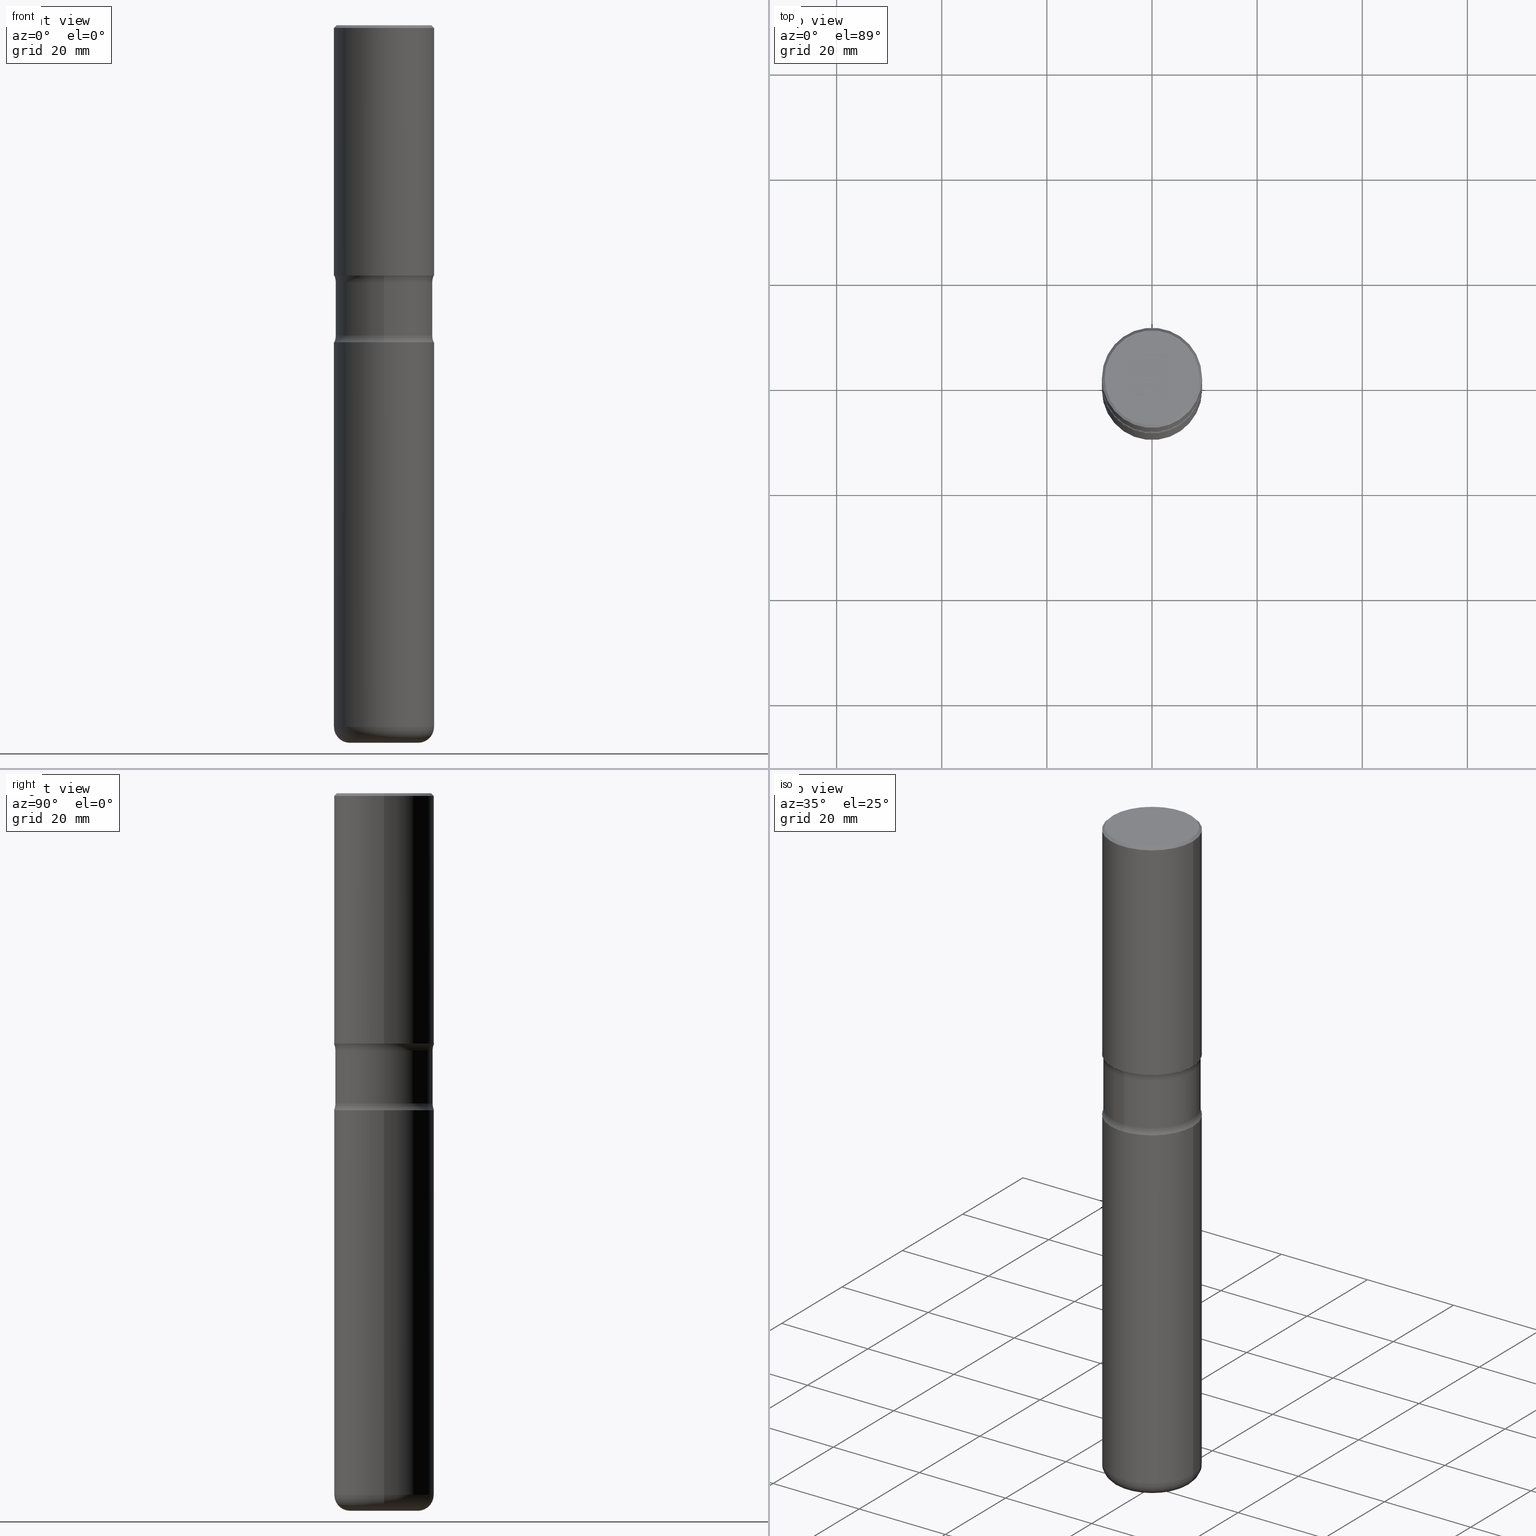
[diagram: canonical four-view strip — front | top / right | iso, engineering-drawing reading convention]
A machine part, canonical four-view strip (front | top / right | iso — engineering-drawing reading convention). The complete STEP part file that produces these views, byte-faithful:
ISO-10303-21;
HEADER;
FILE_DESCRIPTION (( 'STEP AP203' ),
    '1' );
FILE_NAME ('34031.STEP',
    '2024-03-01T23:00:38',
    ( '' ),
    ( '' ),
    'SwSTEP 2.0',
    'SolidWorks 2023',
    '' );
FILE_SCHEMA (( 'CONFIG_CONTROL_DESIGN' ));
ENDSEC;

DATA;
#1 = CARTESIAN_POINT ( 'NONE',  ( -3.354783520910221448E-15, -0.4890000000000080949, -2.323726225026820469 ) ) ;
#2 = ORIENTED_EDGE ( 'NONE', *, *, #478, .F. ) ;
#3 = CARTESIAN_POINT ( 'NONE',  ( 5.807988414689700538E-29, -8.292268179752471696E-15, -2.375000000000000000 ) ) ;
#4 = EDGE_CURVE ( 'NONE', #460, #52, #42, .T. ) ;
#5 = ORIENTED_EDGE ( 'NONE', *, *, #435, .F. ) ;
#6 = AXIS2_PLACEMENT_3D ( 'NONE', #516, #301, #350 ) ;
#7 = CYLINDRICAL_SURFACE ( 'NONE', #34, 0.3750000000000003886 ) ;
#8 = CYLINDRICAL_SURFACE ( 'NONE', #515, 0.3639999999999999902 ) ;
#9 = ORIENTED_EDGE ( 'NONE', *, *, #71, .F. ) ;
#10 = CC_DESIGN_DATE_AND_TIME_ASSIGNMENT ( #437, #479, ( #356 ) ) ;
#11 = DIRECTION ( 'NONE',  ( 1.000000000000000000, -6.982962677686265922E-15, 0.000000000000000000 ) ) ;
#12 = CARTESIAN_POINT ( 'NONE',  ( 2.478951750578624209E-15, 0.3549999999999999822, -1.233073106554166000E-15 ) ) ;
#13 = AXIS2_PLACEMENT_3D ( 'NONE', #505, #32, #217 ) ;
#14 = CIRCLE ( 'NONE', #385, 0.3750000000000002776 ) ;
#15 = VERTEX_POINT ( 'NONE', #332 ) ;
#16 = TOROIDAL_SURFACE ( 'NONE', #432, 0.4889999999999999347, 0.1250000000000000555 ) ;
#17 = APPROVAL_STATUS ( 'not_yet_approved' ) ;
#18 = DIRECTION ( 'NONE',  ( 1.000000000000000000, -6.860497997771530774E-15, 4.841356471107676355E-29 ) ) ;
#19 = ORIENTED_EDGE ( 'NONE', *, *, #525, .F. ) ;
#20 = MECHANICAL_CONTEXT ( 'NONE', #268, 'mechanical' ) ;
#21 = CARTESIAN_POINT ( 'NONE',  ( -0.3750000000000004441, -1.568319917652035099E-14, -5.254999999999999893 ) ) ;
#22 = ORIENTED_EDGE ( 'NONE', *, *, #4, .F. ) ;
#23 = SECURITY_CLASSIFICATION_LEVEL ( 'unclassified' ) ;
#24 = DIRECTION ( 'NONE',  ( -2.438088387897960049E-29, 3.491481338843145188E-15, 1.000000000000000000 ) ) ;
#25 = ORIENTED_EDGE ( 'NONE', *, *, #116, .T. ) ;
#26 = CIRCLE ( 'NONE', #13, 0.3750000000000000555 ) ;
#27 = DATE_AND_TIME ( #197, #379 ) ;
#28 = MANIFOLD_SOLID_BREP ( 'Body-Move/Copy2[1]', #341 ) ;
#29 = PLANE ( 'NONE',  #474 ) ;
#30 = ORIENTED_EDGE ( 'NONE', *, *, #307, .F. ) ;
#31 = FACE_OUTER_BOUND ( 'NONE', #306, .T. ) ;
#32 = DIRECTION ( 'NONE',  ( -2.445468806185136597E-29, 3.491481338843145583E-15, 1.000000000000000000 ) ) ;
#33 = VERTEX_POINT ( 'NONE', #175 ) ;
#34 = AXIS2_PLACEMENT_3D ( 'NONE', #467, #381, #92 ) ;
#35 = DIRECTION ( 'NONE',  ( 2.477262793819919418E-29, -3.445950538948741294E-15, -1.000000000000000000 ) ) ;
#36 = EDGE_CURVE ( 'NONE', #386, #66, #257, .T. ) ;
#37 = CARTESIAN_POINT ( 'NONE',  ( 5.807988414689700538E-29, -8.292268179752471696E-15, -2.375000000000000000 ) ) ;
#38 = EDGE_CURVE ( 'NONE', #309, #534, #497, .T. ) ;
#39 = CARTESIAN_POINT ( 'NONE',  ( 4.710642428869395314E-29, -6.725548938821792843E-15, -1.926273774973178421 ) ) ;
#40 = CYLINDRICAL_SURFACE ( 'NONE', #141, 0.3750000000000003886 ) ;
#41 = CARTESIAN_POINT ( 'NONE',  ( -0.2550000000000004485, -1.631901369830699821E-14, -5.374999999999999112 ) ) ;
#42 = CIRCLE ( 'NONE', #226, 0.3639999999999999902 ) ;
#43 = LOCAL_TIME ( 18, 0, 38.00000000000000000, #537 ) ;
#44 = DIRECTION ( 'NONE',  ( 1.000000000000000000, -6.982962677686265922E-15, 4.876231632511988183E-29 ) ) ;
#45 = VERTEX_POINT ( 'NONE', #455 ) ;
#46 = DIRECTION ( 'NONE',  ( -2.445468806185136597E-29, 3.491481338843145583E-15, 1.000000000000000000 ) ) ;
#47 = ORIENTED_EDGE ( 'NONE', *, *, #476, .T. ) ;
#48 = CARTESIAN_POINT ( 'NONE',  ( -0.3549999999999999822, 2.513866563967055464E-15, 1.280553747028377567E-17 ) ) ;
#49 = AXIS2_PLACEMENT_3D ( 'NONE', #395, #147, #207 ) ;
#50 = DIRECTION ( 'NONE',  ( -2.445468806185136597E-29, 3.491481338843145583E-15, 1.000000000000000000 ) ) ;
#51 = DIRECTION ( 'NONE',  ( 2.477262793819918857E-29, -3.445950538948741294E-15, -1.000000000000000000 ) ) ;
#52 = VERTEX_POINT ( 'NONE', #74 ) ;
#53 = DIRECTION ( 'NONE',  ( 2.477262793819919418E-29, -3.445950538948741294E-15, -1.000000000000000000 ) ) ;
#54 = VERTEX_POINT ( 'NONE', #41 ) ;
#55 = CALENDAR_DATE ( 2024, 1, 3 ) ;
#56 = DIRECTION ( 'NONE',  ( 1.000000000000000000, -6.982962677686265922E-15, 4.876231632511988183E-29 ) ) ;
#57 = EDGE_CURVE ( 'NONE', #344, #398, #507, .T. ) ;
#58 = AXIS2_PLACEMENT_3D ( 'NONE', #1, #133, #259 ) ;
#59 = EDGE_LOOP ( 'NONE', ( #135, #160, #232, #484 ) ) ;
#60 = PERSON_AND_ORGANIZATION ( #148, #536 ) ;
#61 = DIRECTION ( 'NONE',  ( 6.860497997771527618E-15, 1.000000000000000000, 0.000000000000000000 ) ) ;
#62 = CC_DESIGN_PERSON_AND_ORGANIZATION_ASSIGNMENT ( #151, #360, ( #81 ) ) ;
#63 = ORIENTED_EDGE ( 'NONE', *, *, #349, .F. ) ;
#64 = PERSON_AND_ORGANIZATION_ROLE ( 'design_owner' ) ;
#65 = CARTESIAN_POINT ( 'NONE',  ( -2.572686749164268327E-15, -0.3750000000000085487, -2.374999999999998668 ) ) ;
#66 = VERTEX_POINT ( 'NONE', #410 ) ;
#67 = DIRECTION ( 'NONE',  ( -2.445468806185136597E-29, 3.491481338843145583E-15, 1.000000000000000000 ) ) ;
#68 = EDGE_LOOP ( 'NONE', ( #489, #265, #447, #208 ) ) ;
#69 = AXIS2_PLACEMENT_3D ( 'NONE', #397, #159, #308 ) ;
#70 = LOCAL_TIME ( 18, 0, 38.00000000000000000, #104 ) ;
#71 = EDGE_CURVE ( 'NONE', #33, #66, #26, .T. ) ;
#72 = COORDINATED_UNIVERSAL_TIME_OFFSET ( 5, 0, .BEHIND. ) ;
#73 = DIRECTION ( 'NONE',  ( 6.982962677686265922E-15, 1.000000000000000000, -3.445950538948741294E-15 ) ) ;
#74 = CARTESIAN_POINT ( 'NONE',  ( 2.541798414677857502E-15, 0.3639999999999918856, -2.323726225026823577 ) ) ;
#75 = DIRECTION ( 'NONE',  ( 2.477262793819919418E-29, -3.445950538948741294E-15, -1.000000000000000000 ) ) ;
#76 = CARTESIAN_POINT ( 'NONE',  ( 0.000000000000000000, 0.000000000000000000, 0.000000000000000000 ) ) ;
#77 = CARTESIAN_POINT ( 'NONE',  ( 2.618611004132410364E-15, 0.3749999999999920619, -2.375000000000001776 ) ) ;
#78 = ADVANCED_FACE ( 'NONE', ( #287 ), #333, .F. ) ;
#79 = ORIENTED_EDGE ( 'NONE', *, *, #514, .T. ) ;
#80 = AXIS2_PLACEMENT_3D ( 'NONE', #433, #224, #44 ) ;
#81 = SECURITY_CLASSIFICATION ( '', '', #23 ) ;
#82 = DIRECTION ( 'NONE',  ( -2.445468806185136597E-29, 3.491481338843145583E-15, 1.000000000000000000 ) ) ;
#83 = ORIENTED_EDGE ( 'NONE', *, *, #71, .T. ) ;
#84 = CARTESIAN_POINT ( 'NONE',  ( 5.680969799649951184E-29, -8.115581287249711979E-15, -2.323726225026822245 ) ) ;
#85 = FACE_OUTER_BOUND ( 'NONE', #548, .T. ) ;
#86 = TOROIDAL_SURFACE ( 'NONE', #311, 0.2550000000000004485, 0.1199999999999999262 ) ;
#87 = VECTOR ( 'NONE', #222, 39.37007874015748143 ) ;
#88 = AXIS2_PLACEMENT_3D ( 'NONE', #494, #541, #166 ) ;
#89 = CARTESIAN_POINT ( 'NONE',  ( 5.807988414689700538E-29, -8.292268179752471696E-15, -2.375000000000000000 ) ) ;
#90 = CARTESIAN_POINT ( 'NONE',  ( 0.3750000000000003886, -2.618611004132352383E-15, 1.828566290923477884E-29 ) ) ;
#91 = ORIENTED_EDGE ( 'NONE', *, *, #501, .T. ) ;
#92 = DIRECTION ( 'NONE',  ( 1.000000000000000000, -6.982962677686265922E-15, 4.876176775795935793E-29 ) ) ;
#93 = CC_DESIGN_PERSON_AND_ORGANIZATION_ASSIGNMENT ( #543, #310, ( #356 ) ) ;
#94 = AXIS2_PLACEMENT_3D ( 'NONE', #298, #473, #299 ) ;
#95 = FACE_OUTER_BOUND ( 'NONE', #492, .T. ) ;
#96 = EDGE_LOOP ( 'NONE', ( #196, #30 ) ) ;
#97 = DIRECTION ( 'NONE',  ( 6.982962677686265922E-15, 1.000000000000000000, -3.445950538948741294E-15 ) ) ;
#98 = VERTEX_POINT ( 'NONE', #416 ) ;
#99 = DIRECTION ( 'NONE',  ( 0.000000000000000000, 0.000000000000000000, 1.000000000000000000 ) ) ;
#100 = ADVANCED_FACE ( 'NONE', ( #545 ), #128, .F. ) ;
#101 = DIRECTION ( 'NONE',  ( 2.477262793819919418E-29, -3.445950538948741294E-15, -1.000000000000000000 ) ) ;
#102 = ORIENTED_EDGE ( 'NONE', *, *, #366, .T. ) ;
#103 = ORIENTED_EDGE ( 'NONE', *, *, #438, .F. ) ;
#104 = COORDINATED_UNIVERSAL_TIME_OFFSET ( 5, 0, .BEHIND. ) ;
#105 = EDGE_CURVE ( 'NONE', #182, #33, #290, .T. ) ;
#106 = DIRECTION ( 'NONE',  ( -2.445468806185136597E-29, 3.491481338843145583E-15, 1.000000000000000000 ) ) ;
#107 = CIRCLE ( 'NONE', #49, 0.3750000000000002776 ) ;
#108 = AXIS2_PLACEMENT_3D ( 'NONE', #323, #82, #504 ) ;
#109 = ORIENTED_EDGE ( 'NONE', *, *, #554, .F. ) ;
#110 = COORDINATED_UNIVERSAL_TIME_OFFSET ( 5, 0, .BEHIND. ) ;
#111 = CARTESIAN_POINT ( 'NONE',  ( 4.710642428869395314E-29, -6.725548938821792843E-15, -1.926273774973178421 ) ) ;
#112 = VERTEX_POINT ( 'NONE', #511 ) ;
#113 = ADVANCED_FACE ( 'NONE', ( #377 ), #40, .T. ) ;
#114 = DIRECTION ( 'NONE',  ( 1.000000000000000000, -6.982962677686265922E-15, 4.876176775795935793E-29 ) ) ;
#115 = ORIENTED_EDGE ( 'NONE', *, *, #105, .F. ) ;
#116 = EDGE_CURVE ( 'NONE', #398, #460, #121, .T. ) ;
#117 = APPROVAL_DATE_TIME ( #493, #522 ) ;
#118 = DIRECTION ( 'NONE',  ( 6.982962677686266711E-15, 1.000000000000000000, -3.642463991552348591E-15 ) ) ;
#119 = VERTEX_POINT ( 'NONE', #127 ) ;
#120 = AXIS2_PLACEMENT_3D ( 'NONE', #315, #18, #61 ) ;
#121 = LINE ( 'NONE', #373, #234 ) ;
#122 =( CONVERSION_BASED_UNIT ( 'INCH', #411 ) LENGTH_UNIT ( ) NAMED_UNIT ( #319 ) );
#123 = CARTESIAN_POINT ( 'NONE',  ( 0.000000000000000000, 0.000000000000000000, 0.000000000000000000 ) ) ;
#124 = LINE ( 'NONE', #461, #475 ) ;
#125 = DIRECTION ( 'NONE',  ( -6.982962677686265922E-15, -1.000000000000000000, 3.445950538948741294E-15 ) ) ;
#126 = CIRCLE ( 'NONE', #351, 0.3750000000000004996 ) ;
#127 = CARTESIAN_POINT ( 'NONE',  ( 0.3750000000000004441, -2.096634543975308301E-14, -5.254999999999999893 ) ) ;
#128 = PLANE ( 'NONE',  #176 ) ;
#129 = FACE_OUTER_BOUND ( 'NONE', #138, .T. ) ;
#130 = EDGE_CURVE ( 'NONE', #54, #412, #284, .T. ) ;
#131 = TOROIDAL_SURFACE ( 'NONE', #177, 0.4889999999999999347, 0.1250000000000000278 ) ;
#132 = CC_DESIGN_APPROVAL ( #420, ( #356 ) ) ;
#133 = DIRECTION ( 'NONE',  ( 1.000000000000000000, -6.860497997771530774E-15, 4.841356471107676355E-29 ) ) ;
#134 = ADVANCED_FACE ( 'NONE', ( #330 ), #503, .T. ) ;
#135 = ORIENTED_EDGE ( 'NONE', *, *, #510, .F. ) ;
#136 = EDGE_CURVE ( 'NONE', #309, #460, #498, .T. ) ;
#137 = DIRECTION ( 'NONE',  ( 6.982962677686265922E-15, 1.000000000000000000, -3.002030762268421058E-15 ) ) ;
#138 = EDGE_LOOP ( 'NONE', ( #223, #140, #91, #199 ) ) ;
#139 = DIRECTION ( 'NONE',  ( 6.982962677686265922E-15, 1.000000000000000000, -3.445950538948741294E-15 ) ) ;
#140 = ORIENTED_EDGE ( 'NONE', *, *, #438, .T. ) ;
#141 = AXIS2_PLACEMENT_3D ( 'NONE', #76, #500, #219 ) ;
#142 = DIRECTION ( 'NONE',  ( 1.000000000000000000, -6.982962677686263555E-15, 0.000000000000000000 ) ) ;
#143 = APPROVAL_PERSON_ORGANIZATION ( #527, #267, #399 ) ;
#144 = CARTESIAN_POINT ( 'NONE',  ( -2.534954010176524559E-15, -0.3640000000000081504, -2.323726225026820913 ) ) ;
#145 = EDGE_LOOP ( 'NONE', ( #334, #539, #102, #512 ) ) ;
#146 = PRODUCT ( '34031', '34031', '', ( #20 ) ) ;
#147 = DIRECTION ( 'NONE',  ( 2.477262793819919418E-29, -3.445950538948741294E-15, -1.000000000000000000 ) ) ;
#148 = PERSON ( 'UNSPECIFIED', 'UNSPECIFIED', 'UNSPECIFIED', ('UNSPECIFIED'), ('UNSPECIFIED'), ('UNSPECIFIED') ) ;
#149 = ORIENTED_EDGE ( 'NONE', *, *, #4, .T. ) ;
#150 = ORIENTED_EDGE ( 'NONE', *, *, #105, .T. ) ;
#151 = PERSON_AND_ORGANIZATION ( #148, #536 ) ;
#152 = DIRECTION ( 'NONE',  ( -1.000000000000000000, 6.982962677686265922E-15, -4.883557194083112901E-29 ) ) ;
#153 = CIRCLE ( 'NONE', #6, 0.3750000000000000555 ) ;
#154 = AXIS2_PLACEMENT_3D ( 'NONE', #555, #75, #247 ) ;
#155 = ORIENTED_EDGE ( 'NONE', *, *, #546, .F. ) ;
#156 = DATE_AND_TIME ( #452, #43 ) ;
#157 = DESIGN_CONTEXT ( 'detailed design', #496, 'design' ) ;
#158 = ADVANCED_FACE ( 'NONE', ( #383 ), #470, .T. ) ;
#159 = DIRECTION ( 'NONE',  ( -1.000000000000000000, 6.982962677686265922E-15, -4.883557194083112901E-29 ) ) ;
#160 = ORIENTED_EDGE ( 'NONE', *, *, #349, .T. ) ;
#161 = PERSON_AND_ORGANIZATION ( #148, #536 ) ;
#162 = CARTESIAN_POINT ( 'NONE',  ( 1.323977679614945879E-28, -1.863011979659869597E-14, -5.375000000000000888 ) ) ;
#163 = ORIENTED_EDGE ( 'NONE', *, *, #185, .T. ) ;
#164 = DIRECTION ( 'NONE',  ( 1.000000000000000000, 0.000000000000000000, 0.000000000000000000 ) ) ;
#165 = UNCERTAINTY_MEASURE_WITH_UNIT (LENGTH_MEASURE( 1.000000000000000082E-05 ), #122, 'distance_accuracy_value', 'NONE');
#166 = DIRECTION ( 'NONE',  ( 1.000000000000000000, -6.982962677686273021E-15, 0.000000000000000000 ) ) ;
#167 = DIRECTION ( 'NONE',  ( 2.477262793819919418E-29, -3.445950538948741294E-15, -1.000000000000000000 ) ) ;
#168 = ADVANCED_FACE ( 'NONE', ( #422 ), #263, .T. ) ;
#169 = CARTESIAN_POINT ( 'NONE',  ( 4.569357017779739708E-29, -6.569292910278100457E-15, -1.875000000000000000 ) ) ;
#170 = ORIENTED_EDGE ( 'NONE', *, *, #171, .F. ) ;
#171 = EDGE_CURVE ( 'NONE', #386, #182, #392, .T. ) ;
#172 =( NAMED_UNIT ( * ) SI_UNIT ( $, .STERADIAN. ) SOLID_ANGLE_UNIT ( ) );
#173 = ORIENTED_EDGE ( 'NONE', *, *, #501, .F. ) ;
#174 = DIRECTION ( 'NONE',  ( 2.477262793819919418E-29, -3.445950538948741294E-15, -1.000000000000000000 ) ) ;
#175 = CARTESIAN_POINT ( 'NONE',  ( -0.3750000000000000555, 2.548781377355486718E-15, -0.02000000000000006981 ) ) ;
#176 = AXIS2_PLACEMENT_3D ( 'NONE', #37, #220, #125 ) ;
#177 = AXIS2_PLACEMENT_3D ( 'NONE', #521, #518, #348 ) ;
#178 = AXIS2_PLACEMENT_3D ( 'NONE', #12, #192, #353 ) ;
#179 = CC_DESIGN_DATE_AND_TIME_ASSIGNMENT ( #156, #490, ( #81 ) ) ;
#180 = CARTESIAN_POINT ( 'NONE',  ( 5.807988414689700538E-29, -8.292268179752471696E-15, -2.375000000000000000 ) ) ;
#181 = DIRECTION ( 'NONE',  ( 2.477262793819919418E-29, -3.445950538948741294E-15, -1.000000000000000000 ) ) ;
#182 = VERTEX_POINT ( 'NONE', #48 ) ;
#183 = DIRECTION ( 'NONE',  ( 1.000000000000000000, -6.982962677686266711E-15, 4.876176775795935793E-29 ) ) ;
#184 = CLOSED_SHELL ( 'NONE', ( #506, #78, #429, #531, #225, #100, #300, #214 ) ) ;
#185 = EDGE_CURVE ( 'NONE', #344, #52, #387, .T. ) ;
#186 = AXIS2_PLACEMENT_3D ( 'NONE', #111, #538, #97 ) ;
#187 = APPROVAL_PERSON_ORGANIZATION ( #449, #522, #194 ) ;
#188 = DIRECTION ( 'NONE',  ( -2.445468806185136597E-29, 3.491481338843145583E-15, 1.000000000000000000 ) ) ;
#189 = LINE ( 'NONE', #90, #87 ) ;
#190 = DIRECTION ( 'NONE',  ( -1.000000000000000000, 6.982962677686265922E-15, -4.876176775795935793E-29 ) ) ;
#191 = AXIS2_PLACEMENT_3D ( 'NONE', #180, #167, #419 ) ;
#192 = DIRECTION ( 'NONE',  ( 2.438088387897960049E-29, -3.491481338843145188E-15, -1.000000000000000000 ) ) ;
#193 = ORIENTED_EDGE ( 'NONE', *, *, #327, .F. ) ;
#194 = APPROVAL_ROLE ( '' ) ;
#195 = DIRECTION ( 'NONE',  ( 6.982962677686265922E-15, 1.000000000000000000, -3.752538452835526126E-15 ) ) ;
#196 = ORIENTED_EDGE ( 'NONE', *, *, #401, .F. ) ;
#197 = CALENDAR_DATE ( 2024, 1, 3 ) ;
#198 = FACE_OUTER_BOUND ( 'NONE', #230, .T. ) ;
#199 = ORIENTED_EDGE ( 'NONE', *, *, #256, .F. ) ;
#200 = EDGE_CURVE ( 'NONE', #119, #112, #189, .T. ) ;
#201 = COORDINATED_UNIVERSAL_TIME_OFFSET ( 5, 0, .BEHIND. ) ;
#202 = DIRECTION ( 'NONE',  ( -2.445468806185136597E-29, 3.491481338843145583E-15, 1.000000000000000000 ) ) ;
#203 = CIRCLE ( 'NONE', #120, 0.1250000000000001110 ) ;
#204 = LOCAL_TIME ( 18, 0, 38.00000000000000000, #201 ) ;
#205 = ORIENTED_EDGE ( 'NONE', *, *, #185, .F. ) ;
#206 = CARTESIAN_POINT ( 'NONE',  ( 0.000000000000000000, 0.000000000000000000, 0.000000000000000000 ) ) ;
#207 = DIRECTION ( 'NONE',  ( 6.982962677686266711E-15, 1.000000000000000000, -3.642463991552348591E-15 ) ) ;
#208 = ORIENTED_EDGE ( 'NONE', *, *, #258, .F. ) ;
#209 = CYLINDRICAL_SURFACE ( 'NONE', #372, 0.3639999999999999902 ) ;
#210 = DIRECTION ( 'NONE',  ( 2.477262793819919418E-29, -3.445950538948741294E-15, -1.000000000000000000 ) ) ;
#211 = DIRECTION ( 'NONE',  ( -2.445468806185136877E-29, 3.491481338843145188E-15, 1.000000000000000000 ) ) ;
#212 = DIRECTION ( 'NONE',  ( 2.477262793819919418E-29, -3.445950538948741294E-15, -1.000000000000000000 ) ) ;
#213 = AXIS2_PLACEMENT_3D ( 'NONE', #363, #101, #271 ) ;
#214 = ADVANCED_FACE ( 'NONE', ( #95 ), #8, .T. ) ;
#215 = LOCAL_TIME ( 18, 0, 38.00000000000000000, #110 ) ;
#216 = MANIFOLD_SOLID_BREP ( 'Body-Move/Copy2[2]', #413 ) ;
#217 = DIRECTION ( 'NONE',  ( 1.000000000000000000, -6.982962677686265922E-15, 0.000000000000000000 ) ) ;
#218 = DIRECTION ( 'NONE',  ( -2.445468806185136597E-29, 3.491481338843145583E-15, 1.000000000000000000 ) ) ;
#219 = DIRECTION ( 'NONE',  ( 1.000000000000000000, -6.982962677686265922E-15, 4.876176775795935793E-29 ) ) ;
#220 = DIRECTION ( 'NONE',  ( -2.477262793819918857E-29, 3.445950538948741294E-15, 1.000000000000000000 ) ) ;
#221 = CIRCLE ( 'NONE', #523, 0.2550000000000004485 ) ;
#222 = DIRECTION ( 'NONE',  ( -2.445468806185136877E-29, 3.491481338843145188E-15, 1.000000000000000000 ) ) ;
#223 = ORIENTED_EDGE ( 'NONE', *, *, #130, .F. ) ;
#224 = DIRECTION ( 'NONE',  ( -2.445468806185136597E-29, 3.491481338843145583E-15, 1.000000000000000000 ) ) ;
#225 = ADVANCED_FACE ( 'NONE', ( #425 ), #261, .F. ) ;
#226 = AXIS2_PLACEMENT_3D ( 'NONE', #84, #212, #255 ) ;
#227 = AXIS2_PLACEMENT_3D ( 'NONE', #123, #288, #228 ) ;
#228 = DIRECTION ( 'NONE',  ( 1.000000000000000000, -6.982962677686266711E-15, 4.876176775795935793E-29 ) ) ;
#229 = DIRECTION ( 'NONE',  ( 1.000000000000000000, -6.982962677686266711E-15, 4.883557194083113462E-29 ) ) ;
#230 = EDGE_LOOP ( 'NONE', ( #170, #451, #542, #115 ) ) ;
#231 = CARTESIAN_POINT ( 'NONE',  ( 1.314439483324510921E-28, -1.876671219628190647E-14, -5.374999999999999112 ) ) ;
#232 = ORIENTED_EDGE ( 'NONE', *, *, #525, .T. ) ;
#233 = APPROVAL_DATE_TIME ( #27, #420 ) ;
#234 = VECTOR ( 'NONE', #556, 39.37007874015748143 ) ;
#235 = FACE_OUTER_BOUND ( 'NONE', #272, .T. ) ;
#236 = APPLICATION_PROTOCOL_DEFINITION ( 'international standard', 'config_control_design', 1994, #268 ) ;
#237 = CARTESIAN_POINT ( 'NONE',  ( 0.3750000000000002776, -9.165138514463251879E-15, -1.875000000000000444 ) ) ;
#238 = ORIENTED_EDGE ( 'NONE', *, *, #435, .T. ) ;
#239 = ADVANCED_FACE ( 'NONE', ( #129 ), #86, .T. ) ;
#240 = APPROVAL_DATE_TIME ( #540, #267 ) ;
#241 = CARTESIAN_POINT ( 'NONE',  ( 1.285093857650289066E-28, -1.834773443562072984E-14, -5.254999999999999893 ) ) ;
#242 = EDGE_LOOP ( 'NONE', ( #359, #5, #150, #83 ) ) ;
#243 = DIRECTION ( 'NONE',  ( 1.000000000000000000, -6.982962677686263555E-15, 0.000000000000000000 ) ) ;
#244 = CIRCLE ( 'NONE', #547, 0.3639999999999999902 ) ;
#245 = ORIENTED_EDGE ( 'NONE', *, *, #57, .T. ) ;
#246 = SHAPE_DEFINITION_REPRESENTATION ( #388, #553 ) ;
#247 = DIRECTION ( 'NONE',  ( 6.982962677686265922E-15, 1.000000000000000000, -3.752538452835526915E-15 ) ) ;
#248 = CARTESIAN_POINT ( 'NONE',  ( 4.696375632819490183E-29, -6.745979802780860962E-15, -1.926273774973178643 ) ) ;
#249 = DIRECTION ( 'NONE',  ( -2.445468806185136597E-29, 3.491481338843145583E-15, 1.000000000000000000 ) ) ;
#250 = DIRECTION ( 'NONE',  ( 7.105427357601001859E-15, 1.000000000000000000, -3.491481338843145583E-15 ) ) ;
#251 = DIRECTION ( 'NONE',  ( 6.982962677686265922E-15, 1.000000000000000000, -3.752538452835526915E-15 ) ) ;
#252 = CIRCLE ( 'NONE', #378, 0.3549999999999999822 ) ;
#253 = CIRCLE ( 'NONE', #312, 0.3750000000000002776 ) ;
#254 = FACE_OUTER_BOUND ( 'NONE', #277, .T. ) ;
#255 = DIRECTION ( 'NONE',  ( 6.982962677686265922E-15, 1.000000000000000000, -3.752538452835526126E-15 ) ) ;
#256 = EDGE_CURVE ( 'NONE', #412, #119, #393, .T. ) ;
#257 = LINE ( 'NONE', #457, #421 ) ;
#258 = EDGE_CURVE ( 'NONE', #45, #112, #405, .T. ) ;
#259 = DIRECTION ( 'NONE',  ( 6.860497997771532351E-15, 1.000000000000000000, 0.000000000000000000 ) ) ;
#260 = AXIS2_PLACEMENT_3D ( 'NONE', #89, #50, #11 ) ;
#261 = PLANE ( 'NONE',  #485 ) ;
#262 = FACE_OUTER_BOUND ( 'NONE', #145, .T. ) ;
#263 = PLANE ( 'NONE',  #94 ) ;
#264 = AXIS2_PLACEMENT_3D ( 'NONE', #248, #418, #251 ) ;
#265 = ORIENTED_EDGE ( 'NONE', *, *, #256, .T. ) ;
#266 = DIRECTION ( 'NONE',  ( 1.000000000000000000, -6.982962677686263555E-15, 0.000000000000000000 ) ) ;
#267 = APPROVAL ( #365, 'UNSPECIFIED' ) ;
#268 = APPLICATION_CONTEXT ( 'configuration controlled 3d designs of mechanical parts and assemblies' ) ;
#269 = CARTESIAN_POINT ( 'NONE',  ( 2.618611004132398137E-15, 0.3749999999999938383, -1.875000000000001554 ) ) ;
#270 = APPROVAL_ROLE ( '' ) ;
#271 = DIRECTION ( 'NONE',  ( 6.982962677686266711E-15, 1.000000000000000000, -3.642463991552348591E-15 ) ) ;
#272 = EDGE_LOOP ( 'NONE', ( #238, #339 ) ) ;
#273 = PERSON_AND_ORGANIZATION_ROLE ( 'design_supplier' ) ;
#274 = CONICAL_SURFACE ( 'NONE', #302, 0.3750000000000000555, 0.7853981633974477239 ) ;
#275 = ADVANCED_FACE ( 'NONE', ( #389 ), #7, .T. ) ;
#276 = CARTESIAN_POINT ( 'NONE',  ( 4.890937612370289799E-31, -6.982962677686315028E-17, -0.02000000000000006981 ) ) ;
#277 = EDGE_LOOP ( 'NONE', ( #316, #464, #530, #173 ) ) ;
#278 = CALENDAR_DATE ( 2024, 1, 3 ) ;
#279 = CARTESIAN_POINT ( 'NONE',  ( -3.131554243005659264E-46, 4.471029511141341874E-32, 1.280553747030123384E-17 ) ) ;
#280 = ORIENTED_EDGE ( 'NONE', *, *, #116, .F. ) ;
#281 = DIRECTION ( 'NONE',  ( 2.445468806185136597E-29, -3.491481338843145583E-15, -1.000000000000000000 ) ) ;
#282 = ORIENTED_EDGE ( 'NONE', *, *, #514, .F. ) ;
#283 = CARTESIAN_POINT ( 'NONE',  ( 1.285093857650289066E-28, -1.834773443562072984E-14, -5.254999999999999893 ) ) ;
#284 = CIRCLE ( 'NONE', #431, 0.1199999999999999123 ) ;
#285 = CC_DESIGN_APPROVAL ( #522, ( #81 ) ) ;
#286 = ORIENTED_EDGE ( 'NONE', *, *, #338, .T. ) ;
#287 = FACE_OUTER_BOUND ( 'NONE', #445, .T. ) ;
#288 = DIRECTION ( 'NONE',  ( -2.445468806185136597E-29, 3.491481338843145583E-15, 1.000000000000000000 ) ) ;
#289 =( LENGTH_UNIT ( ) NAMED_UNIT ( * ) SI_UNIT ( $, .METRE. ) );
#290 = LINE ( 'NONE', #370, #361 ) ;
#291 = AXIS2_PLACEMENT_3D ( 'NONE', #304, #152, #480 ) ;
#292 = CARTESIAN_POINT ( 'NONE',  ( -0.2550000000000004485, -1.653585045943247197E-14, -5.254999999999999893 ) ) ;
#293 = CARTESIAN_POINT ( 'NONE',  ( 4.585254011597131679E-29, -6.546527510330899496E-15, -1.875000000000000444 ) ) ;
#294 = DIRECTION ( 'NONE',  ( -2.445468806185136597E-29, 3.491481338843145583E-15, 1.000000000000000000 ) ) ;
#295 = TOROIDAL_SURFACE ( 'NONE', #186, 0.4889999999999999347, 0.1250000000000000555 ) ;
#296 = TOROIDAL_SURFACE ( 'NONE', #415, 0.2550000000000004485, 0.1199999999999999262 ) ;
#297 = ADVANCED_FACE ( 'NONE', ( #85 ), #430, .F. ) ;
#298 = CARTESIAN_POINT ( 'NONE',  ( 2.922841210731166295E-28, 4.266515985593223882E-15, -5.375000000000000888 ) ) ;
#299 = DIRECTION ( 'NONE',  ( -1.000000000000000000, 6.982962677686265922E-15, -4.876176775795935793E-29 ) ) ;
#300 = ADVANCED_FACE ( 'NONE', ( #262 ), #131, .F. ) ;
#301 = DIRECTION ( 'NONE',  ( -2.445468806185136597E-29, 3.491481338843145583E-15, 1.000000000000000000 ) ) ;
#302 = AXIS2_PLACEMENT_3D ( 'NONE', #276, #400, #444 ) ;
#303 = CARTESIAN_POINT ( 'NONE',  ( 5.680969799649951184E-29, -8.115581287249711979E-15, -2.323726225026822245 ) ) ;
#304 = CARTESIAN_POINT ( 'NONE',  ( 3.414668749388630980E-15, 0.4889999999999932734, -1.926273774973179975 ) ) ;
#305 = EDGE_CURVE ( 'NONE', #66, #33, #153, .T. ) ;
#306 = EDGE_LOOP ( 'NONE', ( #245, #25, #368, #205 ) ) ;
#307 = EDGE_CURVE ( 'NONE', #98, #408, #14, .T. ) ;
#308 = DIRECTION ( 'NONE',  ( -6.982962677686265133E-15, -1.000000000000000000, 0.000000000000000000 ) ) ;
#309 = VERTEX_POINT ( 'NONE', #65 ) ;
#310 = PERSON_AND_ORGANIZATION_ROLE ( 'creator' ) ;
#311 = AXIS2_PLACEMENT_3D ( 'NONE', #513, #46, #229 ) ;
#312 = AXIS2_PLACEMENT_3D ( 'NONE', #169, #174, #118 ) ;
#313 = DIRECTION ( 'NONE',  ( 1.000000000000000000, -6.982962677686265922E-15, 0.000000000000000000 ) ) ;
#314 = ORIENTED_EDGE ( 'NONE', *, *, #331, .T. ) ;
#315 = CARTESIAN_POINT ( 'NONE',  ( -3.354783520910231309E-15, -0.4890000000000066516, -1.926273774973176645 ) ) ;
#316 = ORIENTED_EDGE ( 'NONE', *, *, #546, .T. ) ;
#317 = CALENDAR_DATE ( 2024, 1, 3 ) ;
#318 = DIRECTION ( 'NONE',  ( -2.445468806185136877E-29, 3.491481338843145188E-15, 1.000000000000000000 ) ) ;
#319 = DIMENSIONAL_EXPONENTS ( 1.000000000000000000, 0.000000000000000000, 0.000000000000000000, 0.000000000000000000, 0.000000000000000000, 0.000000000000000000, 0.000000000000000000 ) ;
#320 = ORIENTED_EDGE ( 'NONE', *, *, #307, .T. ) ;
#321 = EDGE_CURVE ( 'NONE', #344, #440, #441, .T. ) ;
#322 = AXIS2_PLACEMENT_3D ( 'NONE', #375, #210, #552 ) ;
#323 = CARTESIAN_POINT ( 'NONE',  ( 5.807988414689700538E-29, -8.292268179752471696E-15, -2.375000000000000000 ) ) ;
#324 = CIRCLE ( 'NONE', #213, 0.3750000000000002776 ) ;
#325 = AXIS2_PLACEMENT_3D ( 'NONE', #409, #218, #369 ) ;
#326 = DIRECTION ( 'NONE',  ( -0.7071067811865471286, 2.468850131082252722E-15, -0.7071067811865479058 ) ) ;
#327 = EDGE_CURVE ( 'NONE', #440, #346, #107, .T. ) ;
#328 = EDGE_LOOP ( 'NONE', ( #155, #103 ) ) ;
#329 = LINE ( 'NONE', #499, #406 ) ;
#330 = FACE_OUTER_BOUND ( 'NONE', #502, .T. ) ;
#331 = EDGE_CURVE ( 'NONE', #119, #412, #126, .T. ) ;
#332 = CARTESIAN_POINT ( 'NONE',  ( 0.2550000000000004485, -2.054736767909190638E-14, -5.374999999999999112 ) ) ;
#333 = TOROIDAL_SURFACE ( 'NONE', #322, 0.4889999999999999347, 0.1250000000000000278 ) ;
#334 = ORIENTED_EDGE ( 'NONE', *, *, #136, .F. ) ;
#335 = VECTOR ( 'NONE', #181, 39.37007874015748143 ) ;
#336 = ORIENTED_EDGE ( 'NONE', *, *, #510, .T. ) ;
#337 = CARTESIAN_POINT ( 'NONE',  ( 1.323977679614945879E-28, -1.863011979659869597E-14, -5.375000000000000888 ) ) ;
#338 = EDGE_CURVE ( 'NONE', #534, #309, #324, .T. ) ;
#339 = ORIENTED_EDGE ( 'NONE', *, *, #171, .T. ) ;
#340 = DIRECTION ( 'NONE',  ( 2.438088387897960049E-29, -3.491481338843145188E-15, -1.000000000000000000 ) ) ;
#341 = CLOSED_SHELL ( 'NONE', ( #275, #517, #168, #239, #113, #297 ) ) ;
#342 = CIRCLE ( 'NONE', #414, 0.3750000000000002776 ) ;
#343 = VECTOR ( 'NONE', #318, 39.37007874015748143 ) ;
#344 = VERTEX_POINT ( 'NONE', #407 ) ;
#345 = CARTESIAN_POINT ( 'NONE',  ( 1.285093857650289066E-28, -1.834773443562072984E-14, -5.254999999999999893 ) ) ;
#346 = VERTEX_POINT ( 'NONE', #528 ) ;
#347 = PRODUCT_RELATED_PRODUCT_CATEGORY ( 'detail', '', ( #146 ) ) ;
#348 = DIRECTION ( 'NONE',  ( 6.982962677686265922E-15, 1.000000000000000000, -3.445950538948741294E-15 ) ) ;
#349 = EDGE_CURVE ( 'NONE', #398, #346, #203, .T. ) ;
#350 = DIRECTION ( 'NONE',  ( 1.000000000000000000, -6.982962677686265922E-15, 0.000000000000000000 ) ) ;
#351 = AXIS2_PLACEMENT_3D ( 'NONE', #241, #390, #243 ) ;
#352 =( GEOMETRIC_REPRESENTATION_CONTEXT ( 3 ) GLOBAL_UNCERTAINTY_ASSIGNED_CONTEXT ( ( #165 ) ) GLOBAL_UNIT_ASSIGNED_CONTEXT ( ( #122, #417, #172 ) ) REPRESENTATION_CONTEXT ( 'NONE', 'WORKASPACE' ) );
#353 = DIRECTION ( 'NONE',  ( -1.000000000000000000, 6.982962677686265922E-15, -4.876176775795935793E-29 ) ) ;
#354 = EDGE_LOOP ( 'NONE', ( #286, #402 ) ) ;
#355 = ORIENTED_EDGE ( 'NONE', *, *, #478, .T. ) ;
#356 = PRODUCT_DEFINITION ( 'UNKNOWN', '', #442, #157 ) ;
#357 = PERSON_AND_ORGANIZATION ( #148, #536 ) ;
#358 = CARTESIAN_POINT ( 'NONE',  ( 4.890937612370289799E-31, -6.982962677686315028E-17, -0.02000000000000006981 ) ) ;
#359 = ORIENTED_EDGE ( 'NONE', *, *, #36, .F. ) ;
#360 = PERSON_AND_ORGANIZATION_ROLE ( 'classification_officer' ) ;
#361 = VECTOR ( 'NONE', #326, 39.37007874015748143 ) ;
#362 = CC_DESIGN_SECURITY_CLASSIFICATION ( #81, ( #442 ) ) ;
#363 = CARTESIAN_POINT ( 'NONE',  ( 5.807988414689700538E-29, -8.292268179752471696E-15, -2.375000000000000000 ) ) ;
#364 = ORIENTED_EDGE ( 'NONE', *, *, #366, .F. ) ;
#365 = APPROVAL_STATUS ( 'not_yet_approved' ) ;
#366 = EDGE_CURVE ( 'NONE', #534, #52, #466, .T. ) ;
#367 = DIRECTION ( 'NONE',  ( 1.000000000000000000, -6.982962677686265922E-15, 0.000000000000000000 ) ) ;
#368 = ORIENTED_EDGE ( 'NONE', *, *, #427, .F. ) ;
#369 = DIRECTION ( 'NONE',  ( 1.000000000000000000, -6.982962677686263555E-15, 0.000000000000000000 ) ) ;
#370 = CARTESIAN_POINT ( 'NONE',  ( -0.3750000000000000555, 2.548781377355486718E-15, -0.02000000000000006981 ) ) ;
#371 = DIRECTION ( 'NONE',  ( 6.982962677686265922E-15, 1.000000000000000000, -3.002030762268421058E-15 ) ) ;
#372 = AXIS2_PLACEMENT_3D ( 'NONE', #162, #551, #371 ) ;
#373 = CARTESIAN_POINT ( 'NONE',  ( -2.497221271188704667E-15, -0.3640000000000186420, -5.374999999999999112 ) ) ;
#374 = ADVANCED_FACE ( 'NONE', ( #483 ), #274, .T. ) ;
#375 = CARTESIAN_POINT ( 'NONE',  ( 5.682599997417436343E-29, -8.113246751261578348E-15, -2.323726225026822245 ) ) ;
#376 = CARTESIAN_POINT ( 'NONE',  ( -0.3750000000000003886, 2.664535259100378458E-15, -1.844600658845591560E-29 ) ) ;
#377 = FACE_OUTER_BOUND ( 'NONE', #68, .T. ) ;
#378 = AXIS2_PLACEMENT_3D ( 'NONE', #279, #446, #56 ) ;
#379 = LOCAL_TIME ( 18, 0, 38.00000000000000000, #72 ) ;
#380 = CARTESIAN_POINT ( 'NONE',  ( 4.585254011597131679E-29, -6.546527510330899496E-15, -1.875000000000000444 ) ) ;
#381 = DIRECTION ( 'NONE',  ( -2.445468806185136597E-29, 3.491481338843145583E-15, 1.000000000000000000 ) ) ;
#382 = ORIENTED_EDGE ( 'NONE', *, *, #38, .F. ) ;
#383 = FACE_OUTER_BOUND ( 'NONE', #426, .T. ) ;
#384 = MANIFOLD_SOLID_BREP ( 'Body-Move/Copy2[4]', #184 ) ;
#385 = AXIS2_PLACEMENT_3D ( 'NONE', #293, #106, #313 ) ;
#386 = VERTEX_POINT ( 'NONE', #524 ) ;
#387 = LINE ( 'NONE', #520, #335 ) ;
#388 = PRODUCT_DEFINITION_SHAPE ( 'NONE', 'NONE',  #356 ) ;
#389 = FACE_OUTER_BOUND ( 'NONE', #526, .T. ) ;
#390 = DIRECTION ( 'NONE',  ( -2.445468806185136597E-29, 3.491481338843145583E-15, 1.000000000000000000 ) ) ;
#391 = ORIENTED_EDGE ( 'NONE', *, *, #321, .T. ) ;
#392 = CIRCLE ( 'NONE', #80, 0.3549999999999999822 ) ;
#393 = CIRCLE ( 'NONE', #535, 0.3750000000000004996 ) ;
#394 = CIRCLE ( 'NONE', #108, 0.3750000000000002776 ) ;
#395 = CARTESIAN_POINT ( 'NONE',  ( 4.569357017779739708E-29, -6.569292910278100457E-15, -1.875000000000000000 ) ) ;
#396 = ORIENTED_EDGE ( 'NONE', *, *, #327, .T. ) ;
#397 = CARTESIAN_POINT ( 'NONE',  ( 3.414668749388640446E-15, 0.4889999999999918301, -2.323726225026824022 ) ) ;
#398 = VERTEX_POINT ( 'NONE', #491 ) ;
#399 = APPROVAL_ROLE ( '' ) ;
#400 = DIRECTION ( 'NONE',  ( 2.445468806185136597E-29, -3.491481338843145583E-15, -1.000000000000000000 ) ) ;
#401 = EDGE_CURVE ( 'NONE', #408, #98, #342, .T. ) ;
#402 = ORIENTED_EDGE ( 'NONE', *, *, #38, .T. ) ;
#403 = ADVANCED_FACE ( 'NONE', ( #488 ), #29, .F. ) ;
#404 = APPROVAL_STATUS ( 'not_yet_approved' ) ;
#405 = CIRCLE ( 'NONE', #260, 0.3750000000000002776 ) ;
#406 = VECTOR ( 'NONE', #459, 39.37007874015748143 ) ;
#407 = CARTESIAN_POINT ( 'NONE',  ( 2.541798414677847641E-15, 0.3639999999999931624, -1.926273774973179975 ) ) ;
#408 = VERTEX_POINT ( 'NONE', #237 ) ;
#409 = CARTESIAN_POINT ( 'NONE',  ( 1.314439483324510921E-28, -1.876671219628190647E-14, -5.374999999999999112 ) ) ;
#410 = CARTESIAN_POINT ( 'NONE',  ( 0.3750000000000000555, -2.642516375941188029E-15, -0.02000000000000006981 ) ) ;
#411 = LENGTH_MEASURE_WITH_UNIT ( LENGTH_MEASURE( 0.02539999999999999897 ), #289 );
#412 = VERTEX_POINT ( 'NONE', #21 ) ;
#413 = CLOSED_SHELL ( 'NONE', ( #158, #424, #374, #456, #403, #134 ) ) ;
#414 = AXIS2_PLACEMENT_3D ( 'NONE', #439, #67, #367 ) ;
#415 = AXIS2_PLACEMENT_3D ( 'NONE', #283, #249, #549 ) ;
#416 = CARTESIAN_POINT ( 'NONE',  ( -0.3750000000000002776, -6.436433094535016571E-16, -1.875000000000000444 ) ) ;
#417 =( NAMED_UNIT ( * ) PLANE_ANGLE_UNIT ( ) SI_UNIT ( $, .RADIAN. ) );
#418 = DIRECTION ( 'NONE',  ( 2.477262793819919418E-29, -3.445950538948741294E-15, -1.000000000000000000 ) ) ;
#419 = DIRECTION ( 'NONE',  ( 6.982962677686266711E-15, 1.000000000000000000, -3.642463991552348591E-15 ) ) ;
#420 = APPROVAL ( #404, 'UNSPECIFIED' ) ;
#421 = VECTOR ( 'NONE', #560, 39.37007874015748143 ) ;
#422 = FACE_OUTER_BOUND ( 'NONE', #328, .T. ) ;
#423 = AXIS2_PLACEMENT_3D ( 'NONE', #3, #340, #190 ) ;
#424 = ADVANCED_FACE ( 'NONE', ( #198 ), #557, .T. ) ;
#425 = FACE_OUTER_BOUND ( 'NONE', #471, .T. ) ;
#426 = EDGE_LOOP ( 'NONE', ( #481, #434, #558, #2 ) ) ;
#427 = EDGE_CURVE ( 'NONE', #52, #460, #244, .T. ) ;
#428 = CARTESIAN_POINT ( 'NONE',  ( 0.000000000000000000, 0.000000000000000000, 0.000000000000000000 ) ) ;
#429 = ADVANCED_FACE ( 'NONE', ( #477 ), #295, .F. ) ;
#430 = PLANE ( 'NONE',  #423 ) ;
#431 = AXIS2_PLACEMENT_3D ( 'NONE', #292, #250, #550 ) ;
#432 = AXIS2_PLACEMENT_3D ( 'NONE', #39, #35, #73 ) ;
#433 = CARTESIAN_POINT ( 'NONE',  ( -3.131554243005659264E-46, 4.471029511141341874E-32, 1.280553747030123384E-17 ) ) ;
#434 = ORIENTED_EDGE ( 'NONE', *, *, #554, .T. ) ;
#435 = EDGE_CURVE ( 'NONE', #182, #386, #252, .T. ) ;
#436 = PLANE ( 'NONE',  #178 ) ;
#437 = DATE_AND_TIME ( #278, #70 ) ;
#438 = EDGE_CURVE ( 'NONE', #54, #15, #221, .T. ) ;
#439 = CARTESIAN_POINT ( 'NONE',  ( 4.585254011597131679E-29, -6.546527510330899496E-15, -1.875000000000000444 ) ) ;
#440 = VERTEX_POINT ( 'NONE', #269 ) ;
#441 = CIRCLE ( 'NONE', #291, 0.1250000000000001110 ) ;
#442 = PRODUCT_DEFINITION_FORMATION_WITH_SPECIFIED_SOURCE ( 'ANY', '', #146, .NOT_KNOWN. ) ;
#443 = PERSON_AND_ORGANIZATION ( #148, #536 ) ;
#444 = DIRECTION ( 'NONE',  ( -1.000000000000000000, 6.982962677686265922E-15, 0.000000000000000000 ) ) ;
#445 = EDGE_LOOP ( 'NONE', ( #382, #519, #149, #364 ) ) ;
#446 = DIRECTION ( 'NONE',  ( -2.445468806185136597E-29, 3.491481338843145583E-15, 1.000000000000000000 ) ) ;
#447 = ORIENTED_EDGE ( 'NONE', *, *, #200, .T. ) ;
#448 = CC_DESIGN_PERSON_AND_ORGANIZATION_ASSIGNMENT ( #161, #273, ( #442 ) ) ;
#449 = PERSON_AND_ORGANIZATION ( #148, #536 ) ;
#450 = CARTESIAN_POINT ( 'NONE',  ( 4.585254011597131679E-29, -6.546527510330899496E-15, -1.875000000000000444 ) ) ;
#451 = ORIENTED_EDGE ( 'NONE', *, *, #36, .T. ) ;
#452 = CALENDAR_DATE ( 2024, 1, 3 ) ;
#453 = AXIS2_PLACEMENT_3D ( 'NONE', #358, #281, #533 ) ;
#454 = LINE ( 'NONE', #376, #343 ) ;
#455 = CARTESIAN_POINT ( 'NONE',  ( -0.3750000000000002776, -1.065546604858622349E-14, -2.375000000000000000 ) ) ;
#456 = ADVANCED_FACE ( 'NONE', ( #235 ), #436, .F. ) ;
#457 = CARTESIAN_POINT ( 'NONE',  ( 0.3750000000000000555, -2.642516375941188029E-15, -0.02000000000000006981 ) ) ;
#458 = CC_DESIGN_PERSON_AND_ORGANIZATION_ASSIGNMENT ( #357, #64, ( #146 ) ) ;
#459 = DIRECTION ( 'NONE',  ( -2.445468806185136877E-29, 3.491481338843145188E-15, 1.000000000000000000 ) ) ;
#460 = VERTEX_POINT ( 'NONE', #144 ) ;
#461 = CARTESIAN_POINT ( 'NONE',  ( 0.3750000000000001665, -2.618611004132351200E-15, 1.828566290923476763E-29 ) ) ;
#462 = APPROVAL_PERSON_ORGANIZATION ( #60, #420, #270 ) ;
#463 = EDGE_LOOP ( 'NONE', ( #63, #495, #391, #396 ) ) ;
#464 = ORIENTED_EDGE ( 'NONE', *, *, #130, .T. ) ;
#465 = DIRECTION ( 'NONE',  ( 2.477262793819919418E-29, -3.445950538948741294E-15, -1.000000000000000000 ) ) ;
#466 = CIRCLE ( 'NONE', #69, 0.1250000000000000278 ) ;
#467 = CARTESIAN_POINT ( 'NONE',  ( 0.000000000000000000, 0.000000000000000000, 0.000000000000000000 ) ) ;
#468 = CIRCLE ( 'NONE', #154, 0.3639999999999999347 ) ;
#469 = CC_DESIGN_APPROVAL ( #267, ( #442 ) ) ;
#470 = CYLINDRICAL_SURFACE ( 'NONE', #508, 0.3750000000000001665 ) ;
#471 = EDGE_LOOP ( 'NONE', ( #193, #19 ) ) ;
#472 = ORIENTED_EDGE ( 'NONE', *, *, #258, .T. ) ;
#473 = DIRECTION ( 'NONE',  ( 2.438088387897960049E-29, -3.491481338843145188E-15, -1.000000000000000000 ) ) ;
#474 = AXIS2_PLACEMENT_3D ( 'NONE', #450, #24, #114 ) ;
#475 = VECTOR ( 'NONE', #211, 39.37007874015748143 ) ;
#476 = EDGE_CURVE ( 'NONE', #412, #45, #454, .T. ) ;
#477 = FACE_OUTER_BOUND ( 'NONE', #59, .T. ) ;
#478 = EDGE_CURVE ( 'NONE', #408, #66, #124, .T. ) ;
#479 = DATE_TIME_ROLE ( 'creation_date' ) ;
#480 = DIRECTION ( 'NONE',  ( -6.982962677686264344E-15, -1.000000000000000000, 0.000000000000000000 ) ) ;
#481 = ORIENTED_EDGE ( 'NONE', *, *, #401, .T. ) ;
#482 = APPLICATION_PROTOCOL_DEFINITION ( 'international standard', 'config_control_design', 1994, #496 ) ;
#483 = FACE_OUTER_BOUND ( 'NONE', #242, .T. ) ;
#484 = ORIENTED_EDGE ( 'NONE', *, *, #321, .F. ) ;
#485 = AXIS2_PLACEMENT_3D ( 'NONE', #380, #51, #139 ) ;
#486 = CIRCLE ( 'NONE', #325, 0.2550000000000004485 ) ;
#487 = CC_DESIGN_PERSON_AND_ORGANIZATION_ASSIGNMENT ( #443, #532, ( #442 ) ) ;
#488 = FACE_OUTER_BOUND ( 'NONE', #96, .T. ) ;
#489 = ORIENTED_EDGE ( 'NONE', *, *, #476, .F. ) ;
#490 = DATE_TIME_ROLE ( 'classification_date' ) ;
#491 = CARTESIAN_POINT ( 'NONE',  ( -2.534954010176535209E-15, -0.3640000000000067071, -1.926273774973177311 ) ) ;
#492 = EDGE_LOOP ( 'NONE', ( #280, #336, #163, #22 ) ) ;
#493 = DATE_AND_TIME ( #317, #215 ) ;
#494 = CARTESIAN_POINT ( 'NONE',  ( 0.2550000000000004485, -2.012838991843072974E-14, -5.254999999999999893 ) ) ;
#495 = ORIENTED_EDGE ( 'NONE', *, *, #57, .F. ) ;
#496 = APPLICATION_CONTEXT ( 'configuration controlled 3d designs of mechanical parts and assemblies' ) ;
#497 = CIRCLE ( 'NONE', #191, 0.3750000000000002776 ) ;
#498 = CIRCLE ( 'NONE', #58, 0.1250000000000000278 ) ;
#499 = CARTESIAN_POINT ( 'NONE',  ( -0.3750000000000001665, 2.664535259100376880E-15, -1.844600658845590439E-29 ) ) ;
#500 = DIRECTION ( 'NONE',  ( -2.445468806185136597E-29, 3.491481338843145583E-15, 1.000000000000000000 ) ) ;
#501 = EDGE_CURVE ( 'NONE', #15, #119, #509, .T. ) ;
#502 = EDGE_LOOP ( 'NONE', ( #109, #320, #355, #9 ) ) ;
#503 = CYLINDRICAL_SURFACE ( 'NONE', #227, 0.3750000000000001665 ) ;
#504 = DIRECTION ( 'NONE',  ( 1.000000000000000000, -6.982962677686265922E-15, 0.000000000000000000 ) ) ;
#505 = CARTESIAN_POINT ( 'NONE',  ( 4.890937612370289799E-31, -6.982962677686315028E-17, -0.02000000000000006981 ) ) ;
#506 = ADVANCED_FACE ( 'NONE', ( #31 ), #209, .T. ) ;
#507 = CIRCLE ( 'NONE', #264, 0.3639999999999999347 ) ;
#508 = AXIS2_PLACEMENT_3D ( 'NONE', #428, #188, #183 ) ;
#509 = CIRCLE ( 'NONE', #88, 0.1199999999999999123 ) ;
#510 = EDGE_CURVE ( 'NONE', #398, #344, #468, .T. ) ;
#511 = CARTESIAN_POINT ( 'NONE',  ( 0.3750000000000002776, -1.091087918388482329E-14, -2.375000000000000000 ) ) ;
#512 = ORIENTED_EDGE ( 'NONE', *, *, #427, .T. ) ;
#513 = CARTESIAN_POINT ( 'NONE',  ( 1.285093857650289066E-28, -1.834773443562072984E-14, -5.254999999999999893 ) ) ;
#514 = EDGE_CURVE ( 'NONE', #112, #45, #394, .T. ) ;
#515 = AXIS2_PLACEMENT_3D ( 'NONE', #337, #465, #137 ) ;
#516 = CARTESIAN_POINT ( 'NONE',  ( 4.890937612370289799E-31, -6.982962677686315028E-17, -0.02000000000000006981 ) ) ;
#517 = ADVANCED_FACE ( 'NONE', ( #254 ), #296, .T. ) ;
#518 = DIRECTION ( 'NONE',  ( 2.477262793819919418E-29, -3.445950538948741294E-15, -1.000000000000000000 ) ) ;
#519 = ORIENTED_EDGE ( 'NONE', *, *, #136, .T. ) ;
#520 = CARTESIAN_POINT ( 'NONE',  ( 2.541798414677933233E-15, 0.3639999999999813385, -5.375000000000001776 ) ) ;
#521 = CARTESIAN_POINT ( 'NONE',  ( 5.682599997417436343E-29, -8.113246751261578348E-15, -2.323726225026822245 ) ) ;
#522 = APPROVAL ( #17, 'UNSPECIFIED' ) ;
#523 = AXIS2_PLACEMENT_3D ( 'NONE', #231, #202, #142 ) ;
#524 = CARTESIAN_POINT ( 'NONE',  ( 0.3549999999999999822, -2.538996582575041048E-15, 1.280553747031877983E-17 ) ) ;
#525 = EDGE_CURVE ( 'NONE', #346, #440, #253, .T. ) ;
#526 = EDGE_LOOP ( 'NONE', ( #314, #47, #282, #529 ) ) ;
#527 = PERSON_AND_ORGANIZATION ( #148, #536 ) ;
#528 = CARTESIAN_POINT ( 'NONE',  ( -2.572686749164280949E-15, -0.3750000000000069389, -1.874999999999998668 ) ) ;
#529 = ORIENTED_EDGE ( 'NONE', *, *, #200, .F. ) ;
#530 = ORIENTED_EDGE ( 'NONE', *, *, #331, .F. ) ;
#531 = ADVANCED_FACE ( 'NONE', ( #544 ), #16, .F. ) ;
#532 = PERSON_AND_ORGANIZATION_ROLE ( 'creator' ) ;
#533 = DIRECTION ( 'NONE',  ( -1.000000000000000000, 6.982962677686265922E-15, 0.000000000000000000 ) ) ;
#534 = VERTEX_POINT ( 'NONE', #77 ) ;
#535 = AXIS2_PLACEMENT_3D ( 'NONE', #345, #294, #266 ) ;
#536 = ORGANIZATION ( 'UNSPECIFIED', 'UNSPECIFIED', '' ) ;
#537 = COORDINATED_UNIVERSAL_TIME_OFFSET ( 5, 0, .BEHIND. ) ;
#538 = DIRECTION ( 'NONE',  ( 2.477262793819919418E-29, -3.445950538948741294E-15, -1.000000000000000000 ) ) ;
#539 = ORIENTED_EDGE ( 'NONE', *, *, #338, .F. ) ;
#540 = DATE_AND_TIME ( #55, #204 ) ;
#541 = DIRECTION ( 'NONE',  ( -6.982962677686266711E-15, -1.000000000000000000, 3.491481338843145583E-15 ) ) ;
#542 = ORIENTED_EDGE ( 'NONE', *, *, #305, .T. ) ;
#543 = PERSON_AND_ORGANIZATION ( #148, #536 ) ;
#544 = FACE_OUTER_BOUND ( 'NONE', #463, .T. ) ;
#545 = FACE_OUTER_BOUND ( 'NONE', #354, .T. ) ;
#546 = EDGE_CURVE ( 'NONE', #15, #54, #486, .T. ) ;
#547 = AXIS2_PLACEMENT_3D ( 'NONE', #303, #53, #195 ) ;
#548 = EDGE_LOOP ( 'NONE', ( #79, #472 ) ) ;
#549 = DIRECTION ( 'NONE',  ( 1.000000000000000000, -6.982962677686266711E-15, 4.883557194083113462E-29 ) ) ;
#550 = DIRECTION ( 'NONE',  ( -1.000000000000000000, 7.105427357600996337E-15, 0.000000000000000000 ) ) ;
#551 = DIRECTION ( 'NONE',  ( 2.477262793819919418E-29, -3.445950538948741294E-15, -1.000000000000000000 ) ) ;
#552 = DIRECTION ( 'NONE',  ( 6.982962677686265922E-15, 1.000000000000000000, -3.445950538948741294E-15 ) ) ;
#553 = ADVANCED_BREP_SHAPE_REPRESENTATION ( '34031', ( #28, #216, #384, #559 ), #352 ) ;
#554 = EDGE_CURVE ( 'NONE', #98, #33, #329, .T. ) ;
#555 = CARTESIAN_POINT ( 'NONE',  ( 4.696375632819490183E-29, -6.745979802780860962E-15, -1.926273774973178643 ) ) ;
#556 = DIRECTION ( 'NONE',  ( 2.477262793819919418E-29, -3.445950538948741294E-15, -1.000000000000000000 ) ) ;
#557 = CONICAL_SURFACE ( 'NONE', #453, 0.3750000000000000555, 0.7853981633974477239 ) ;
#558 = ORIENTED_EDGE ( 'NONE', *, *, #305, .F. ) ;
#559 = AXIS2_PLACEMENT_3D ( 'NONE', #206, #99, #164 ) ;
#560 = DIRECTION ( 'NONE',  ( 0.7071067811865471286, -7.319954787623254468E-15, -0.7071067811865479058 ) ) ;
ENDSEC;
END-ISO-10303-21;
